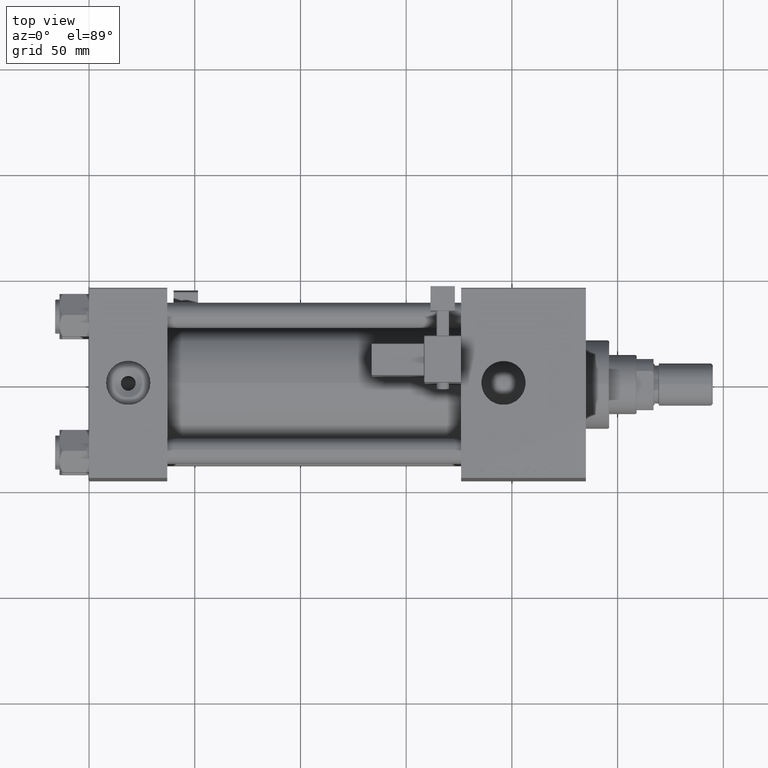
[diagram: clean part render]
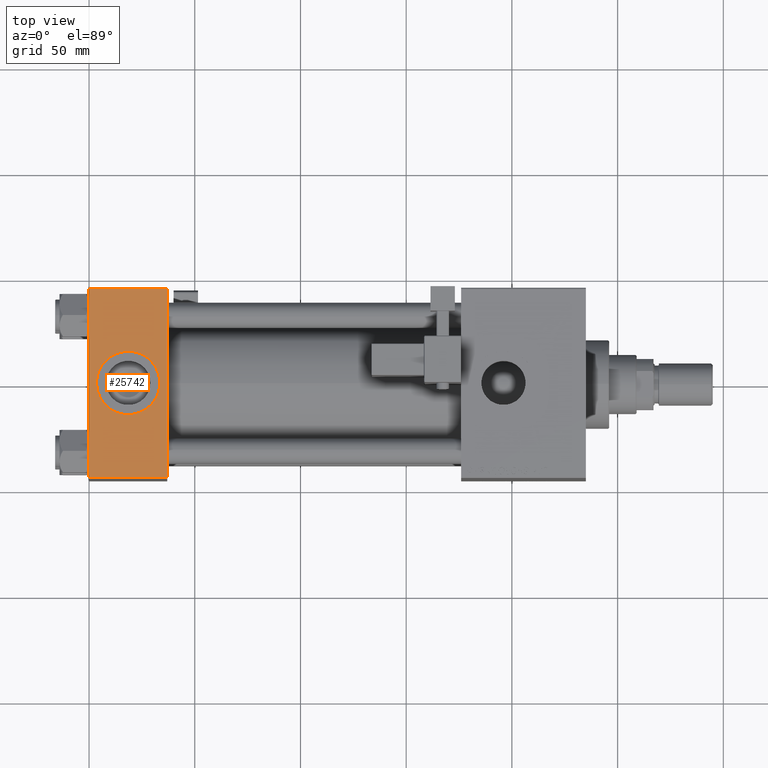
[diagram: same view with one face highlighted and labeled with its STEP entity id]
A machine part, top view. The second image highlights one B-rep face of the part: STEP entity #25742.
In plain terms, the highlighted planar face has unit normal (0, 0, -1).
Its self-contained STEP definition (entity closure, byte-faithful):
#1685 = CARTESIAN_POINT ( 'NONE',  ( 37.00000000000000000, 44.49999999999998579, 45.00000000000001421 ) ) ;
#3114 = EDGE_CURVE ( 'NONE', #49160, #20834, #54223, .T. ) ;
#3808 = CARTESIAN_POINT ( 'NONE',  ( 0.000000000000000000, 44.99999999999998579, 45.00000000000001421 ) ) ;
#4619 = DIRECTION ( 'NONE',  ( 0.000000000000000000, 0.000000000000000000, 1.000000000000000000 ) ) ;
#4693 = EDGE_LOOP ( 'NONE', ( #7924, #31180 ) ) ;
#4843 = DIRECTION ( 'NONE',  ( -1.000000000000000000, 0.000000000000000000, 0.000000000000000000 ) ) ;
#5989 = ORIENTED_EDGE ( 'NONE', *, *, #14828, .T. ) ;
#7390 = FACE_BOUND ( 'NONE', #4693, .T. ) ;
#7924 = ORIENTED_EDGE ( 'NONE', *, *, #17277, .F. ) ;
#9162 = CARTESIAN_POINT ( 'NONE',  ( 0.000000000000000000, -44.49999999999995737, 45.00000000000000000 ) ) ;
#9924 = VECTOR ( 'NONE', #4843, 1000.000000000000000 ) ;
#10576 = AXIS2_PLACEMENT_3D ( 'NONE', #46719, #26272, #51135 ) ;
#11801 = FACE_OUTER_BOUND ( 'NONE', #15751, .T. ) ;
#12525 = CARTESIAN_POINT ( 'NONE',  ( 37.00000000000000000, 44.99999999999998579, 45.00000000000001421 ) ) ;
#13673 = AXIS2_PLACEMENT_3D ( 'NONE', #41080, #20088, #32808 ) ;
#13845 = CARTESIAN_POINT ( 'NONE',  ( 37.00000000000000000, -44.49999999999998579, 45.00000000000000000 ) ) ;
#14502 = VERTEX_POINT ( 'NONE', #18498 ) ;
#14828 = EDGE_CURVE ( 'NONE', #17318, #14502, #22939, .T. ) ;
#15751 = EDGE_LOOP ( 'NONE', ( #20359, #5989, #39602, #44148 ) ) ;
#15953 = PLANE ( 'NONE',  #13673 ) ;
#15975 = DIRECTION ( 'NONE',  ( 0.000000000000000000, -1.000000000000000000, -1.541976423090495387E-16 ) ) ;
#17277 = EDGE_CURVE ( 'NONE', #20834, #49160, #23781, .T. ) ;
#17318 = VERTEX_POINT ( 'NONE', #9162 ) ;
#17716 = DIRECTION ( 'NONE',  ( 1.000000000000000000, 0.000000000000000000, 0.000000000000000000 ) ) ;
#18498 = CARTESIAN_POINT ( 'NONE',  ( 37.00000000000000000, -44.49999999999995737, 45.00000000000000000 ) ) ;
#20088 = DIRECTION ( 'NONE',  ( 0.000000000000000000, 1.541976423090495633E-16, -1.000000000000000000 ) ) ;
#20359 = ORIENTED_EDGE ( 'NONE', *, *, #43369, .T. ) ;
#20765 = VERTEX_POINT ( 'NONE', #32373 ) ;
#20834 = VERTEX_POINT ( 'NONE', #30869 ) ;
#21113 = EDGE_CURVE ( 'NONE', #23283, #20765, #38008, .T. ) ;
#21439 = EDGE_CURVE ( 'NONE', #23283, #14502, #33533, .T. ) ;
#22828 = VECTOR ( 'NONE', #17716, 1000.000000000000000 ) ;
#22939 = LINE ( 'NONE', #13845, #22828 ) ;
#23283 = VERTEX_POINT ( 'NONE', #1685 ) ;
#23781 = CIRCLE ( 'NONE', #10576, 15.00000000000000355 ) ;
#24703 = VECTOR ( 'NONE', #29375, 1000.000000000000000 ) ;
#25742 = ADVANCED_FACE ( 'NONE', ( #7390, #11801 ), #15953, .F. ) ;
#26097 = CARTESIAN_POINT ( 'NONE',  ( 0.000000000000000000, 44.49999999999998579, 45.00000000000001421 ) ) ;
#26272 = DIRECTION ( 'NONE',  ( 0.000000000000000000, 0.000000000000000000, 1.000000000000000000 ) ) ;
#28936 = LINE ( 'NONE', #3808, #32652 ) ;
#29375 = DIRECTION ( 'NONE',  ( 0.000000000000000000, -1.000000000000000000, -1.541976423090495387E-16 ) ) ;
#29743 = DIRECTION ( 'NONE',  ( 1.000000000000000000, 0.000000000000000000, 0.000000000000000000 ) ) ;
#30869 = CARTESIAN_POINT ( 'NONE',  ( 33.50000000000000000, -8.673617379884038628E-15, 45.00000000000000711 ) ) ;
#31180 = ORIENTED_EDGE ( 'NONE', *, *, #3114, .F. ) ;
#32373 = CARTESIAN_POINT ( 'NONE',  ( 0.000000000000000000, 44.49999999999998579, 45.00000000000001421 ) ) ;
#32652 = VECTOR ( 'NONE', #15975, 1000.000000000000000 ) ;
#32808 = DIRECTION ( 'NONE',  ( 0.000000000000000000, 1.000000000000000000, 1.541976423090495633E-16 ) ) ;
#33081 = AXIS2_PLACEMENT_3D ( 'NONE', #39388, #4619, #29743 ) ;
#33318 = CARTESIAN_POINT ( 'NONE',  ( 3.499999999999997780, -6.836647181163008250E-15, 45.00000000000000711 ) ) ;
#33533 = LINE ( 'NONE', #12525, #24703 ) ;
#38008 = LINE ( 'NONE', #26097, #9924 ) ;
#39388 = CARTESIAN_POINT ( 'NONE',  ( 18.50000000000000000, -8.673617379884038628E-15, 45.00000000000000711 ) ) ;
#39602 = ORIENTED_EDGE ( 'NONE', *, *, #21439, .F. ) ;
#41080 = CARTESIAN_POINT ( 'NONE',  ( 37.00000000000000000, 44.99999999999998579, 45.00000000000001421 ) ) ;
#43369 = EDGE_CURVE ( 'NONE', #20765, #17318, #28936, .T. ) ;
#44148 = ORIENTED_EDGE ( 'NONE', *, *, #21113, .T. ) ;
#46719 = CARTESIAN_POINT ( 'NONE',  ( 18.50000000000000000, -8.673617379884038628E-15, 45.00000000000000711 ) ) ;
#49160 = VERTEX_POINT ( 'NONE', #33318 ) ;
#51135 = DIRECTION ( 'NONE',  ( 1.000000000000000000, 0.000000000000000000, 0.000000000000000000 ) ) ;
#54223 = CIRCLE ( 'NONE', #33081, 15.00000000000000355 ) ;